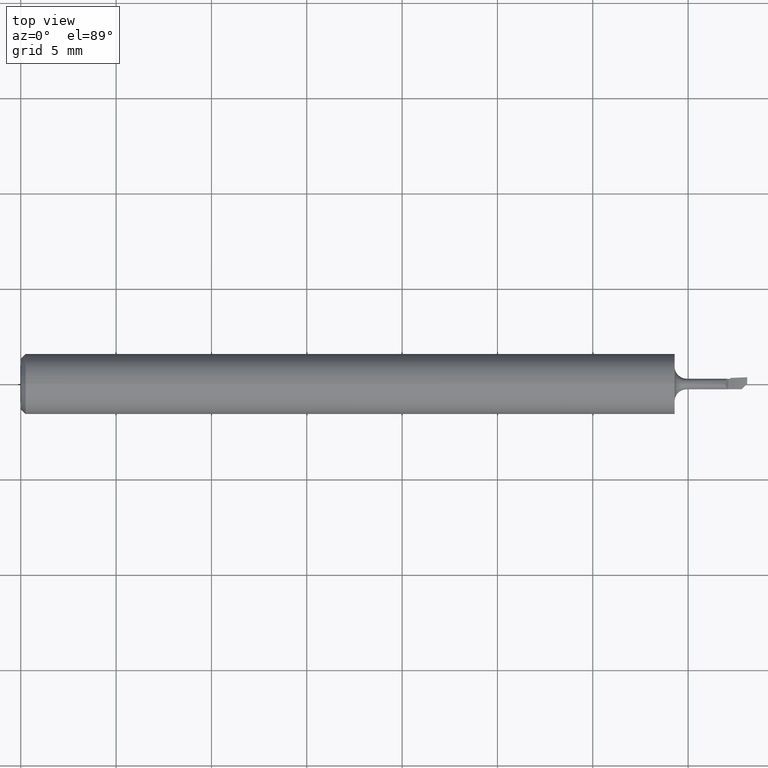
[diagram: clean part render]
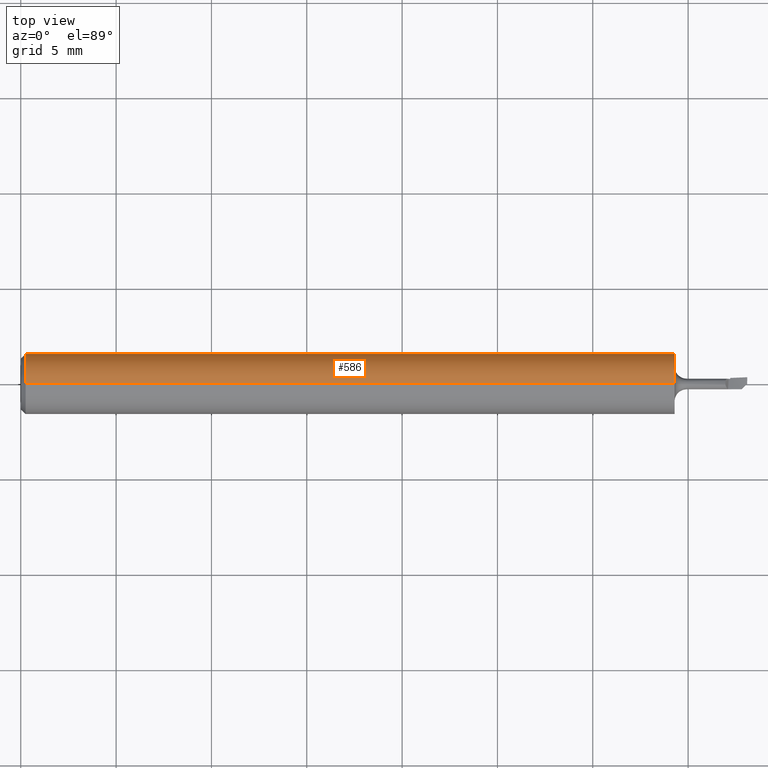
[diagram: same view with one face highlighted and labeled with its STEP entity id]
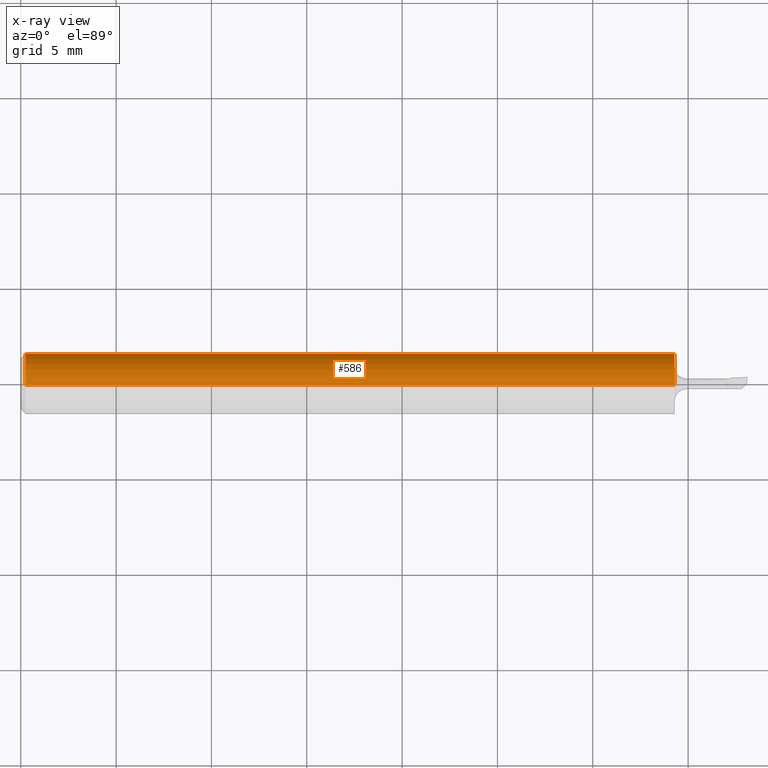
[diagram: x-ray of the same camera — body ghosted, the highlighted face saturated]
A machine part, top view. The second image highlights one B-rep face of the part: STEP entity #586.
The next image is the same camera in x-ray: the body ghosted, the highlighted face saturated — about 0% of this face is hidden behind the body in this view.
In plain terms, the highlighted cylindrical surface (edge-blend (fillet) strip) has radius 1.5837 mm, axis along (-1, -0, -0).
Its self-contained STEP definition (entity closure, byte-faithful):
#12 = CARTESIAN_POINT ( 'NONE',  ( 0.01000000000000000021, 7.635672792683748212E-18, -0.06235000000000000264 ) ) ;
#22 = ORIENTED_EDGE ( 'NONE', *, *, #564, .F. ) ;
#26 = EDGE_LOOP ( 'NONE', ( #22, #548, #594, #174 ) ) ;
#27 = CARTESIAN_POINT ( 'NONE',  ( 1.350000000000000311, 0.000000000000000000, 0.06234999999999997489 ) ) ;
#31 = CARTESIAN_POINT ( 'NONE',  ( 1.350000000000000311, 0.000000000000000000, 0.000000000000000000 ) ) ;
#39 = DIRECTION ( 'NONE',  ( -1.000000000000000000, -0.000000000000000000, -0.000000000000000000 ) ) ;
#44 = CARTESIAN_POINT ( 'NONE',  ( 0.000000000000000000, 7.635672792683743590E-18, -0.06234999999999997489 ) ) ;
#48 = CARTESIAN_POINT ( 'NONE',  ( 0.000000000000000000, 0.000000000000000000, 0.000000000000000000 ) ) ;
#50 = VERTEX_POINT ( 'NONE', #27 ) ;
#137 = VERTEX_POINT ( 'NONE', #690 ) ;
#139 = VECTOR ( 'NONE', #145, 39.37007874015748143 ) ;
#145 = DIRECTION ( 'NONE',  ( -1.000000000000000000, -0.000000000000000000, -0.000000000000000000 ) ) ;
#170 = EDGE_CURVE ( 'NONE', #517, #659, #691, .T. ) ;
#174 = ORIENTED_EDGE ( 'NONE', *, *, #550, .F. ) ;
#211 = CARTESIAN_POINT ( 'NONE',  ( 0.01000000000000000021, 0.000000000000000000, 0.000000000000000000 ) ) ;
#261 = DIRECTION ( 'NONE',  ( 0.000000000000000000, 0.000000000000000000, 1.000000000000000000 ) ) ;
#301 = FACE_OUTER_BOUND ( 'NONE', #26, .T. ) ;
#304 = CIRCLE ( 'NONE', #421, 0.06234999999999997489 ) ;
#315 = CARTESIAN_POINT ( 'NONE',  ( 0.01000000000000000021, 0.000000000000000000, 0.06235000000000000264 ) ) ;
#365 = DIRECTION ( 'NONE',  ( -1.000000000000000000, -0.000000000000000000, -0.000000000000000000 ) ) ;
#375 = LINE ( 'NONE', #44, #585 ) ;
#386 = AXIS2_PLACEMENT_3D ( 'NONE', #211, #365, #425 ) ;
#421 = AXIS2_PLACEMENT_3D ( 'NONE', #31, #528, #463 ) ;
#425 = DIRECTION ( 'NONE',  ( 0.000000000000000000, 0.000000000000000000, 1.000000000000000000 ) ) ;
#463 = DIRECTION ( 'NONE',  ( 0.000000000000000000, 0.000000000000000000, -1.000000000000000000 ) ) ;
#472 = LINE ( 'NONE', #685, #139 ) ;
#486 = AXIS2_PLACEMENT_3D ( 'NONE', #48, #696, #261 ) ;
#517 = VERTEX_POINT ( 'NONE', #315 ) ;
#528 = DIRECTION ( 'NONE',  ( 1.000000000000000000, 0.000000000000000000, 0.000000000000000000 ) ) ;
#548 = ORIENTED_EDGE ( 'NONE', *, *, #591, .T. ) ;
#550 = EDGE_CURVE ( 'NONE', #50, #517, #472, .T. ) ;
#564 = EDGE_CURVE ( 'NONE', #137, #50, #304, .T. ) ;
#585 = VECTOR ( 'NONE', #39, 39.37007874015748143 ) ;
#586 = ADVANCED_FACE ( 'NONE', ( #301 ), #693, .T. ) ;
#591 = EDGE_CURVE ( 'NONE', #137, #659, #375, .T. ) ;
#594 = ORIENTED_EDGE ( 'NONE', *, *, #170, .F. ) ;
#659 = VERTEX_POINT ( 'NONE', #12 ) ;
#685 = CARTESIAN_POINT ( 'NONE',  ( 0.000000000000000000, 0.000000000000000000, 0.06234999999999997489 ) ) ;
#690 = CARTESIAN_POINT ( 'NONE',  ( 1.350000000000000311, 7.635672792683743590E-18, -0.06234999999999997489 ) ) ;
#691 = CIRCLE ( 'NONE', #386, 0.06235000000000000264 ) ;
#693 = CYLINDRICAL_SURFACE ( 'NONE', #486, 0.06234999999999997489 ) ;
#696 = DIRECTION ( 'NONE',  ( -1.000000000000000000, -0.000000000000000000, -0.000000000000000000 ) ) ;